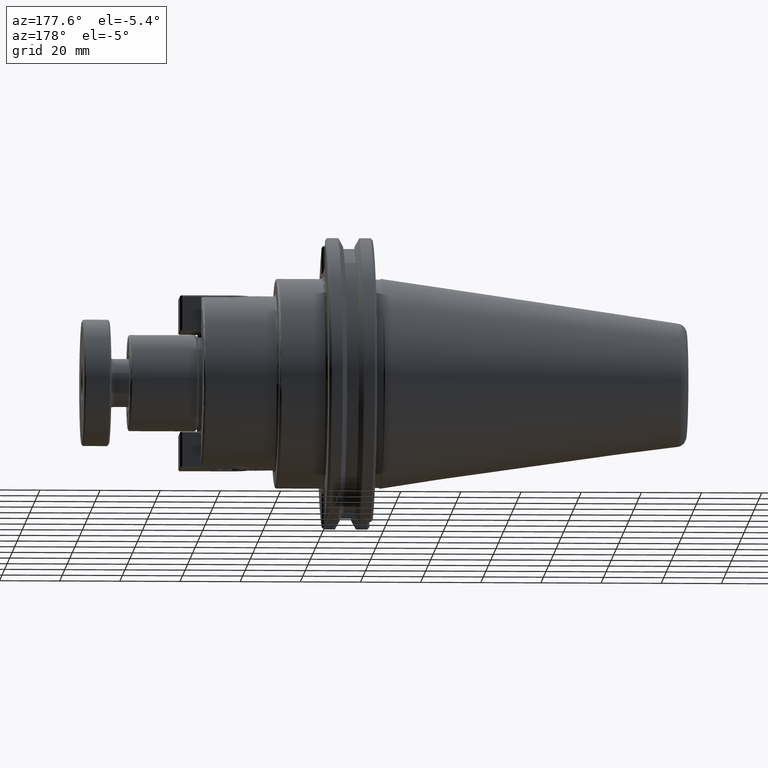
[diagram: clean part render]
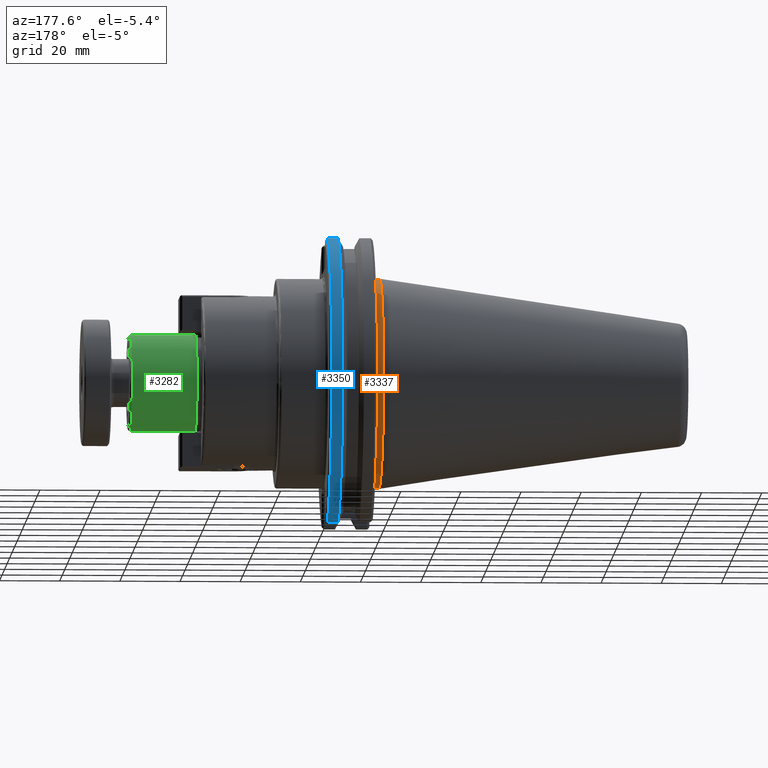
[diagram: same view with three faces highlighted in distinct colors, each labeled with its STEP entity id]
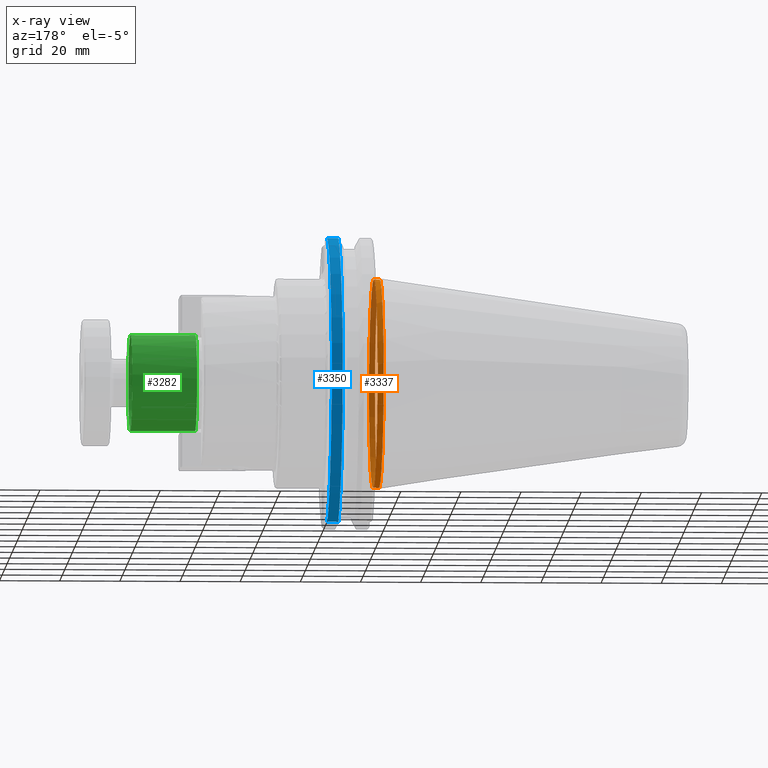
[diagram: x-ray of the same camera — body ghosted, the three highlighted faces saturated]
A machine part, auxiliary view with three faces highlighted in distinct colors.
The next image is the same camera in x-ray (body ghosted, the three faces saturated) — at least one of them is partly hidden behind the body in this view.
Their STEP definitions:

[orange] entity #3337 — the highlighted cylindrical surface (bore or boss wall) has radius 34.671 mm, axis along (-1, 0, 0).
#392=FACE_OUTER_BOUND('',#590,.T.);
#590=EDGE_LOOP('',(#2615,#2616,#2617,#2618,#2619));
#784=CIRCLE('',#3762,1.365);
#785=CIRCLE('',#3763,1.365);
#788=CIRCLE('',#3768,1.365);
#975=LINE('',#6589,#1201);
#1201=VECTOR('',#4448,1.365);
#1505=VERTEX_POINT('',#6576);
#1506=VERTEX_POINT('',#6578);
#1507=VERTEX_POINT('',#6588);
#1908=EDGE_CURVE('',#1505,#1506,#784,.T.);
#1909=EDGE_CURVE('',#1506,#1505,#785,.T.);
#1915=EDGE_CURVE('',#1506,#1507,#975,.T.);
#1916=EDGE_CURVE('',#1507,#1507,#788,.T.);
#2615=ORIENTED_EDGE('',*,*,#1908,.F.);
#2616=ORIENTED_EDGE('',*,*,#1909,.F.);
#2617=ORIENTED_EDGE('',*,*,#1915,.T.);
#2618=ORIENTED_EDGE('',*,*,#1916,.F.);
#2619=ORIENTED_EDGE('',*,*,#1915,.F.);
#3098=CYLINDRICAL_SURFACE('',#3767,1.365);
#3337=ADVANCED_FACE('',(#392),#3098,.T.);
#3762=AXIS2_PLACEMENT_3D('',#6579,#4433,#4434);
#3763=AXIS2_PLACEMENT_3D('',#6580,#4435,#4436);
#3767=AXIS2_PLACEMENT_3D('',#6587,#4446,#4447);
#3768=AXIS2_PLACEMENT_3D('',#6590,#4449,#4450);
#4433=DIRECTION('center_axis',(1.,0.,0.));
#4434=DIRECTION('ref_axis',(0.,-1.,-1.22460635382238E-16));
#4435=DIRECTION('center_axis',(1.,0.,0.));
#4436=DIRECTION('ref_axis',(0.,-1.,-1.22460635382238E-16));
#4446=DIRECTION('center_axis',(-1.,0.,0.));
#4447=DIRECTION('ref_axis',(0.,1.,0.));
#4448=DIRECTION('',(-1.,0.,0.));
#4449=DIRECTION('center_axis',(-1.,0.,0.));
#4450=DIRECTION('ref_axis',(0.,1.,0.));
#6576=CARTESIAN_POINT('',(0.095,-1.67164288083614E-16,-1.365));
#6578=CARTESIAN_POINT('',(0.095,-1.365,1.67164288083614E-16));
#6579=CARTESIAN_POINT('Origin',(0.095,0.,0.));
#6580=CARTESIAN_POINT('Origin',(0.095,0.,0.));
#6587=CARTESIAN_POINT('Origin',(0.0711602540378443,0.,0.));
#6588=CARTESIAN_POINT('',(0.0173205080756885,-1.365,1.67164288083614E-16));
#6589=CARTESIAN_POINT('',(0.0711602540378443,-1.365,1.67164288083614E-16));
#6590=CARTESIAN_POINT('Origin',(0.0173205080756885,0.,0.));

[blue] entity #3350 — the highlighted cylindrical surface (partial cylindrical patch) has radius 49.2125 mm, axis along (1, 0, 0).
#405=FACE_OUTER_BOUND('',#605,.T.);
#605=EDGE_LOOP('',(#2693,#2694,#2695,#2696));
#798=CIRCLE('',#3789,1.9375);
#799=CIRCLE('',#3792,1.9375);
#923=LINE('',#6056,#1149);
#984=LINE('',#6642,#1210);
#1149=VECTOR('',#4298,0.393700787401575);
#1210=VECTOR('',#4497,0.393700787401575);
#1446=VERTEX_POINT('',#6051);
#1447=VERTEX_POINT('',#6055);
#1518=VERTEX_POINT('',#6637);
#1519=VERTEX_POINT('',#6641);
#1819=EDGE_CURVE('',#1446,#1447,#923,.T.);
#1938=EDGE_CURVE('',#1518,#1519,#984,.T.);
#1940=EDGE_CURVE('',#1519,#1446,#798,.T.);
#1943=EDGE_CURVE('',#1518,#1447,#799,.T.);
#2693=ORIENTED_EDGE('',*,*,#1938,.F.);
#2694=ORIENTED_EDGE('',*,*,#1943,.T.);
#2695=ORIENTED_EDGE('',*,*,#1819,.F.);
#2696=ORIENTED_EDGE('',*,*,#1940,.F.);
#3101=CYLINDRICAL_SURFACE('',#3791,1.9375);
#3350=ADVANCED_FACE('',(#405),#3101,.T.);
#3789=AXIS2_PLACEMENT_3D('',#6647,#4500,#4501);
#3791=AXIS2_PLACEMENT_3D('',#6654,#4505,#4506);
#3792=AXIS2_PLACEMENT_3D('',#6655,#4507,#4508);
#4298=DIRECTION('',(-1.,0.,0.));
#4497=DIRECTION('',(1.,0.,0.));
#4500=DIRECTION('center_axis',(1.,0.,0.));
#4501=DIRECTION('ref_axis',(-1.03378135458692E-13,1.,0.));
#4505=DIRECTION('center_axis',(1.,0.,0.));
#4506=DIRECTION('ref_axis',(-1.03378135458692E-13,1.,0.));
#4507=DIRECTION('center_axis',(1.,0.,0.));
#4508=DIRECTION('ref_axis',(-1.03378135458692E-13,1.,0.));
#6051=CARTESIAN_POINT('',(0.72,0.527075588370989,1.86442955730255));
#6055=CARTESIAN_POINT('',(0.57717387222665,0.527075588370989,1.86442955730255));
#6056=CARTESIAN_POINT('',(0.4375,0.527075588370989,1.86442955730255));
#6637=CARTESIAN_POINT('',(0.57717387222665,0.527075588371057,-1.86442955730253));
#6641=CARTESIAN_POINT('',(0.72,0.527075588371057,-1.86442955730253));
#6642=CARTESIAN_POINT('',(0.4375,0.527075588371057,-1.86442955730253));
#6647=CARTESIAN_POINT('Origin',(0.72,0.,0.));
#6654=CARTESIAN_POINT('Origin',(0.4375,0.,0.));
#6655=CARTESIAN_POINT('Origin',(0.57717387222665,0.,0.));

[green] entity #3282 — the highlighted cylindrical surface (bore or boss wall) has radius 15.9969 mm, axis along (1, 0, 0).
#337=FACE_OUTER_BOUND('',#525,.T.);
#525=EDGE_LOOP('',(#2320,#2321,#2322,#2323,#2324));
#758=CIRCLE('',#3674,0.6298);
#759=CIRCLE('',#3675,0.6298);
#760=CIRCLE('',#3677,0.6298);
#894=LINE('',#5283,#1120);
#1120=VECTOR('',#4185,0.6298);
#1388=VERTEX_POINT('',#5276);
#1389=VERTEX_POINT('',#5278);
#1390=VERTEX_POINT('',#5282);
#1739=EDGE_CURVE('',#1388,#1389,#758,.T.);
#1740=EDGE_CURVE('',#1389,#1388,#759,.T.);
#1741=EDGE_CURVE('',#1389,#1390,#894,.T.);
#1742=EDGE_CURVE('',#1390,#1390,#760,.T.);
#2320=ORIENTED_EDGE('',*,*,#1740,.F.);
#2321=ORIENTED_EDGE('',*,*,#1741,.T.);
#2322=ORIENTED_EDGE('',*,*,#1742,.T.);
#2323=ORIENTED_EDGE('',*,*,#1741,.F.);
#2324=ORIENTED_EDGE('',*,*,#1739,.F.);
#3082=CYLINDRICAL_SURFACE('',#3676,0.6298);
#3282=ADVANCED_FACE('',(#337),#3082,.T.);
#3674=AXIS2_PLACEMENT_3D('',#5279,#4179,#4180);
#3675=AXIS2_PLACEMENT_3D('',#5280,#4181,#4182);
#3676=AXIS2_PLACEMENT_3D('',#5281,#4183,#4184);
#3677=AXIS2_PLACEMENT_3D('',#5284,#4186,#4187);
#4179=DIRECTION('center_axis',(1.,1.7859313964704E-16,0.));
#4180=DIRECTION('ref_axis',(1.82181034826769E-16,-1.,1.22464679914735E-16));
#4181=DIRECTION('center_axis',(1.,1.7859313964704E-16,0.));
#4182=DIRECTION('ref_axis',(1.82181034826769E-16,-1.,1.22464679914735E-16));
#4183=DIRECTION('center_axis',(1.,1.7859313964704E-16,0.));
#4184=DIRECTION('ref_axis',(-1.2449935796189E-13,1.,0.));
#4185=DIRECTION('',(-1.,-1.7859313964704E-16,0.));
#4186=DIRECTION('center_axis',(1.,1.7859313964704E-16,0.));
#4187=DIRECTION('ref_axis',(-1.2449935796189E-13,1.,0.));
#5276=CARTESIAN_POINT('',(3.27708661417323,9.23522219948013E-17,0.6298));
#5278=CARTESIAN_POINT('',(3.27708661417334,-0.6298,-7.71282554103003E-17));
#5279=CARTESIAN_POINT('Origin',(3.27708661417323,1.69480477405102E-16,0.));
#5280=CARTESIAN_POINT('Origin',(3.27708661417323,1.69480477405102E-16,0.));
#5281=CARTESIAN_POINT('Origin',(2.83464566929134,9.0463559950242E-17,0.));
#5282=CARTESIAN_POINT('',(2.42867276184099,-0.6298,-7.71282554103003E-17));
#5283=CARTESIAN_POINT('',(2.83464566929142,-0.6298,-7.71282554103003E-17));
#5284=CARTESIAN_POINT('Origin',(2.42867276184092,1.79595837970337E-17,0.));